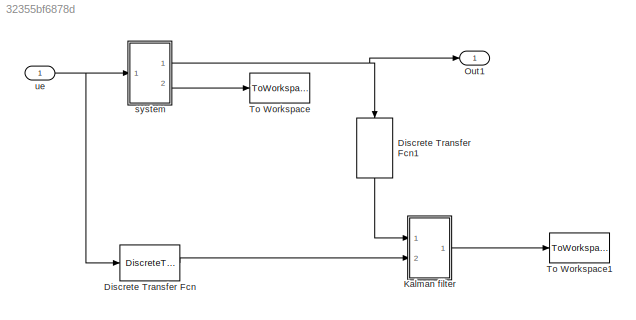
MODEL slx_32355bf6878d
KIND model
BLOCK [DiscreteTransferFcn] Discrete Transfer Fcn
  Denominator = [1]
  InputPortMap = u0
  Ports = [1, 1]
  SampleTime = Ts
BLOCK [DiscreteTransferFcn] Discrete Transfer Fcn1
  Denominator = [1]
  InputPortMap = u0
  Ports = [1, 1]
  SampleTime = Ts
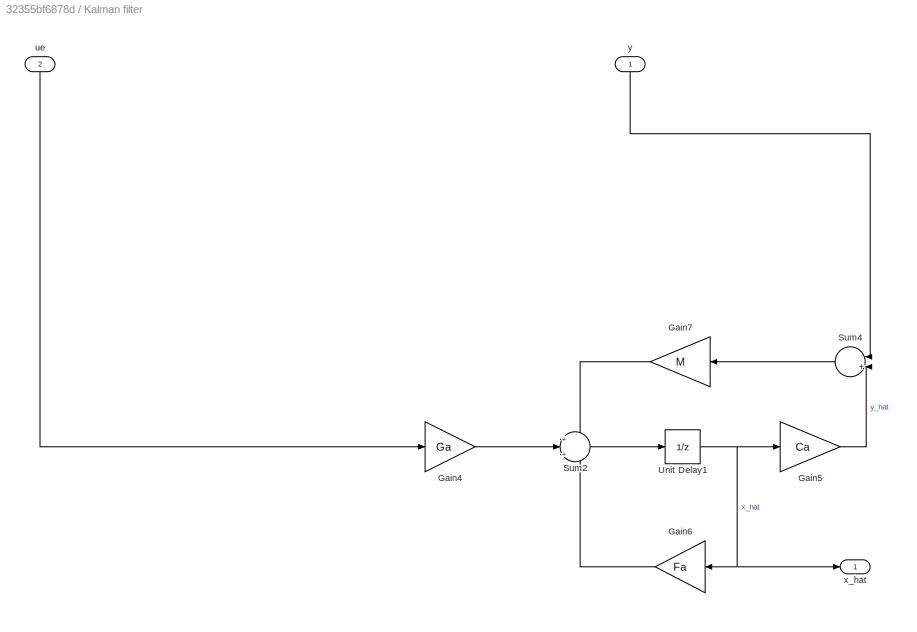
BLOCK [SubSystem] Kalman filter
  Ports = [2, 1]
  RequestExecContextInheritance = off
BLOCK [Gain] Kalman filter/Gain4
  Gain = Ga
  Multiplication = Matrix(K*u)
  OutDataTypeStr = Inherit: Inherit via internal rule
  ParamDataTypeStr = Inherit: Inherit via internal rule
  SaturateOnIntegerOverflow = off
BLOCK [Gain] Kalman filter/Gain5
  Gain = Ca
  Multiplication = Matrix(K*u)
  OutDataTypeStr = Inherit: Inherit via internal rule
  ParamDataTypeStr = Inherit: Inherit via internal rule
  SaturateOnIntegerOverflow = off
BLOCK [Gain] Kalman filter/Gain6
  Gain = Fa
  Multiplication = Matrix(K*u)
  OutDataTypeStr = Inherit: Inherit via internal rule
  ParamDataTypeStr = Inherit: Inherit via internal rule
  SaturateOnIntegerOverflow = off
BLOCK [Gain] Kalman filter/Gain7
  Gain = M
  Multiplication = Matrix(K*u)
  OutDataTypeStr = Inherit: Inherit via internal rule
  ParamDataTypeStr = Inherit: Inherit via internal rule
  SaturateOnIntegerOverflow = off
BLOCK [Sum] Kalman filter/Sum2
  IconShape = round
  InputSameDT = off
  Inputs = +|+|+
  OutDataTypeStr = Inherit: Inherit via internal rule
  Ports = [3, 1]
  SaturateOnIntegerOverflow = off
BLOCK [Sum] Kalman filter/Sum4
  IconShape = round
  InputSameDT = off
  Inputs = |+|-|
  OutDataTypeStr = Inherit: Inherit via internal rule
  Ports = [2, 1]
  SaturateOnIntegerOverflow = off
BLOCK [UnitDelay] Kalman filter/Unit Delay1
  InputProcessing = Elements as channels (sample based)
  SampleTime = -1
BLOCK [Inport] Kalman filter/ue
  IconDisplay = Port number
  Port = 2
BLOCK [Outport] Kalman filter/x_hat
  IconDisplay = Port number
BLOCK [Inport] Kalman filter/y 
  IconDisplay = Port number
BLOCK [Outport] Out1
  IconDisplay = Port number
BLOCK [ToWorkspace] To Workspace
  FixptAsFi = on
  MaxDataPoints = inf
  Ports = [1]
  SampleTime = -1
  Save2DSignal = 3-D array (concatenate along third dimension)
  SaveFormat = Timeseries
  VariableName = xoutP22
BLOCK [ToWorkspace] To Workspace1
  FixptAsFi = on
  MaxDataPoints = inf
  Ports = [1]
  SampleTime = -1
  Save2DSignal = 3-D array (concatenate along third dimension)
  SaveFormat = Timeseries
  VariableName = xhatoutP22
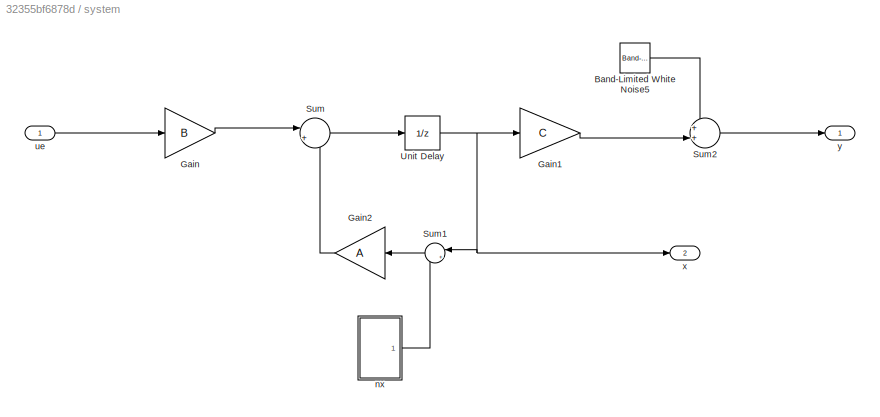
BLOCK [SubSystem] system
  Ports = [1, 2]
  RequestExecContextInheritance = off
BLOCK [Reference] system/Band-Limited White Noise5  REF=simulink/Sources/Band-Limited
White Noise
  Cov = [sigman2]
  Ports = [0, 1]
  SourceBlock = simulink/Sources/Band-Limited\nWhite Noise
  SourceType = Band-Limited White Noise.
  Ts = Ts
  VectorParams1D = on
  seed = [193457]
BLOCK [Gain] system/Gain
  Gain = B
  Multiplication = Matrix(K*u)
  OutDataTypeStr = Inherit: Inherit via internal rule
  ParamDataTypeStr = Inherit: Inherit via internal rule
  SaturateOnIntegerOverflow = off
BLOCK [Gain] system/Gain1
  Gain = C
  Multiplication = Matrix(K*u)
  OutDataTypeStr = Inherit: Inherit via internal rule
  ParamDataTypeStr = Inherit: Inherit via internal rule
  SaturateOnIntegerOverflow = off
BLOCK [Gain] system/Gain2
  Gain = A
  Multiplication = Matrix(K*u)
  OutDataTypeStr = Inherit: Inherit via internal rule
  ParamDataTypeStr = Inherit: Inherit via internal rule
  SaturateOnIntegerOverflow = off
BLOCK [Sum] system/Sum
  IconShape = round
  InputSameDT = off
  Inputs = |++
  OutDataTypeStr = Inherit: Inherit via internal rule
  Ports = [2, 1]
  SaturateOnIntegerOverflow = off
BLOCK [Sum] system/Sum1
  IconShape = round
  InputSameDT = off
  Inputs = |++
  OutDataTypeStr = Inherit: Inherit via internal rule
  Ports = [2, 1]
  SaturateOnIntegerOverflow = off
BLOCK [Sum] system/Sum2
  IconShape = round
  InputSameDT = off
  Inputs = ++|
  OutDataTypeStr = Inherit: Inherit via internal rule
  Ports = [2, 1]
  SaturateOnIntegerOverflow = off
BLOCK [UnitDelay] system/Unit Delay
  InputProcessing = Elements as channels (sample based)
  SampleTime = -1
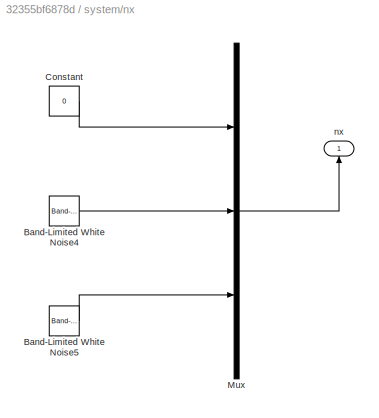
BLOCK [SubSystem] system/nx
  Ports = [0, 1]
  RequestExecContextInheritance = off
BLOCK [Reference] system/nx/Band-Limited White Noise4  REF=simulink/Sources/Band-Limited
White Noise
  Cov = sigmav
  Ports = [0, 1]
  SourceBlock = simulink/Sources/Band-Limited\nWhite Noise
  SourceType = Band-Limited White Noise.
  Ts = Ts
  VectorParams1D = on
  seed = [123458]
BLOCK [Reference] system/nx/Band-Limited White Noise5  REF=simulink/Sources/Band-Limited
White Noise
  Cov = sigmai
  Ports = [0, 1]
  SourceBlock = simulink/Sources/Band-Limited\nWhite Noise
  SourceType = Band-Limited White Noise.
  Ts = Ts
  VectorParams1D = on
  seed = [123457]
BLOCK [Constant] system/nx/Constant
  Value = 0
BLOCK [Mux] system/nx/Mux
  DisplayOption = bar
  Inputs = 3
  Ports = [3, 1]
BLOCK [Outport] system/nx/nx
  IconDisplay = Port number
BLOCK [Inport] system/ue
  IconDisplay = Port number
BLOCK [Outport] system/x
  IconDisplay = Port number
  Port = 2
BLOCK [Outport] system/y
  IconDisplay = Port number
BLOCK [Inport] ue
  IconDisplay = Port number
LINE Discrete Transfer Fcn1:1 -> Kalman filter:1
LINE Discrete Transfer Fcn:1 -> Kalman filter:2
LINE Kalman filter/Gain4:1 -> Kalman filter/Sum2:2
LINE Kalman filter/Gain5:1 -> Kalman filter/Sum4:2
LINE Kalman filter/Gain6:1 -> Kalman filter/Sum2:3
LINE Kalman filter/Gain7:1 -> Kalman filter/Sum2:1
LINE Kalman filter/Sum2:1 -> Kalman filter/Unit Delay1:1
LINE Kalman filter/Sum4:1 -> Kalman filter/Gain7:1
NET Kalman filter/Unit Delay1:1 -> Kalman filter/Gain5:1, Kalman filter/Gain6:1, Kalman filter/x_hat:1
LINE Kalman filter/ue:1 -> Kalman filter/Gain4:1
LINE Kalman filter/y :1 -> Kalman filter/Sum4:1
LINE Kalman filter:1 -> To Workspace1:1
LINE system/Band-Limited White Noise5:1 -> system/Sum2:1
LINE system/Gain1:1 -> system/Sum2:2
LINE system/Gain2:1 -> system/Sum:2
LINE system/Gain:1 -> system/Sum:1
LINE system/Sum1:1 -> system/Gain2:1
LINE system/Sum2:1 -> system/y:1
LINE system/Sum:1 -> system/Unit Delay:1
NET system/Unit Delay:1 -> system/Gain1:1, system/Sum1:1, system/x:1
LINE system/nx/Band-Limited White Noise4:1 -> system/nx/Mux:2
LINE system/nx/Band-Limited White Noise5:1 -> system/nx/Mux:3
LINE system/nx/Constant:1 -> system/nx/Mux:1
LINE system/nx/Mux:1 -> system/nx/nx:1
LINE system/nx:1 -> system/Sum1:2
LINE system/ue:1 -> system/Gain:1
NET system:1 -> Discrete Transfer Fcn1:1, Out1:1
LINE system:2 -> To Workspace:1
NET ue:1 -> Discrete Transfer Fcn:1, system:1
note: NET lines group one-source signal fan-out (src -> all destinations, sorted); 1:1 wires keep LINE
